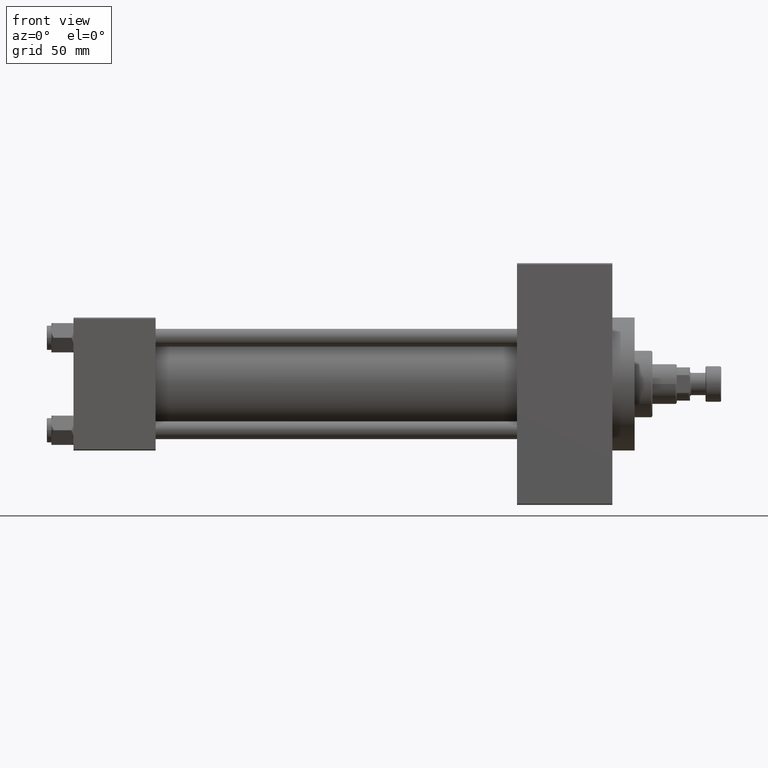
[diagram: clean part render]
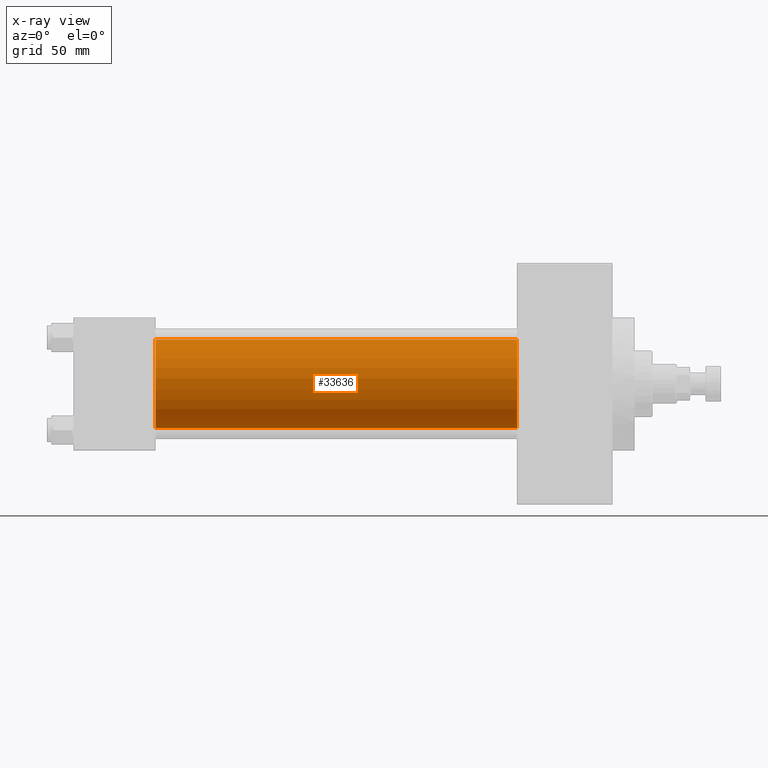
[diagram: x-ray — body ghosted, one internal face saturated and labeled with its STEP entity id]
A machine part, front view, then the same camera in x-ray: the body is ghosted and one INTERNAL B-rep face — a face not visible from any outside direction — is saturated and labeled: STEP entity #33636.
In plain terms, the highlighted cylindrical surface (partial cylindrical patch) has radius 20 mm, axis along (-1, -0, -0).
Its self-contained STEP definition (entity closure, byte-faithful):
#789 = VERTEX_POINT ( 'NONE', #48350 ) ;
#3115 = CARTESIAN_POINT ( 'NONE',  ( 37.00000000000000000, -2.602085213965210642E-15, 0.000000000000000000 ) ) ;
#5639 = CARTESIAN_POINT ( 'NONE',  ( 200.0000000000000000, -2.602085213965210642E-15, 0.000000000000000000 ) ) ;
#7123 = DIRECTION ( 'NONE',  ( 1.000000000000000000, 0.000000000000000000, 0.000000000000000000 ) ) ;
#8199 = EDGE_CURVE ( 'NONE', #789, #20925, #27838, .T. ) ;
#8956 = CARTESIAN_POINT ( 'NONE',  ( 200.0000000000000000, -1.527916156705042519E-16, -20.00000000000000000 ) ) ;
#9455 = VERTEX_POINT ( 'NONE', #26634 ) ;
#9946 = DIRECTION ( 'NONE',  ( -1.000000000000000000, -0.000000000000000000, -0.000000000000000000 ) ) ;
#10307 = CARTESIAN_POINT ( 'NONE',  ( 200.0000000000000000, -2.602085213965210642E-15, 20.00000000000000000 ) ) ;
#11573 = EDGE_LOOP ( 'NONE', ( #49442, #42451, #15808, #18235 ) ) ;
#11867 = CARTESIAN_POINT ( 'NONE',  ( 37.00000000000000000, -1.527916156705042519E-16, -20.00000000000000000 ) ) ;
#15808 = ORIENTED_EDGE ( 'NONE', *, *, #19436, .F. ) ;
#17196 = DIRECTION ( 'NONE',  ( 0.000000000000000000, 0.000000000000000000, -1.000000000000000000 ) ) ;
#18235 = ORIENTED_EDGE ( 'NONE', *, *, #35973, .F. ) ;
#19436 = EDGE_CURVE ( 'NONE', #9455, #40500, #48622, .T. ) ;
#20925 = VERTEX_POINT ( 'NONE', #45870 ) ;
#23032 = AXIS2_PLACEMENT_3D ( 'NONE', #5639, #32544, #17196 ) ;
#26634 = CARTESIAN_POINT ( 'NONE',  ( 37.00000000000000000, -2.602085213965210642E-15, 20.00000000000000000 ) ) ;
#27838 = CIRCLE ( 'NONE', #23032, 20.00000000000000000 ) ;
#28596 = DIRECTION ( 'NONE',  ( -1.000000000000000000, -0.000000000000000000, -0.000000000000000000 ) ) ;
#32343 = LINE ( 'NONE', #8956, #35509 ) ;
#32544 = DIRECTION ( 'NONE',  ( 1.000000000000000000, 0.000000000000000000, 0.000000000000000000 ) ) ;
#32628 = CARTESIAN_POINT ( 'NONE',  ( 200.0000000000000000, -2.602085213965210642E-15, 0.000000000000000000 ) ) ;
#33636 = ADVANCED_FACE ( 'NONE', ( #40935 ), #44192, .F. ) ;
#33788 = DIRECTION ( 'NONE',  ( 0.000000000000000000, 0.000000000000000000, -1.000000000000000000 ) ) ;
#35509 = VECTOR ( 'NONE', #9946, 1000.000000000000000 ) ;
#35973 = EDGE_CURVE ( 'NONE', #789, #9455, #49293, .T. ) ;
#37328 = EDGE_CURVE ( 'NONE', #20925, #40500, #32343, .T. ) ;
#40500 = VERTEX_POINT ( 'NONE', #11867 ) ;
#40935 = FACE_OUTER_BOUND ( 'NONE', #11573, .T. ) ;
#41005 = DIRECTION ( 'NONE',  ( -1.000000000000000000, -0.000000000000000000, -0.000000000000000000 ) ) ;
#42451 = ORIENTED_EDGE ( 'NONE', *, *, #37328, .T. ) ;
#42608 = AXIS2_PLACEMENT_3D ( 'NONE', #32628, #28596, #44691 ) ;
#44192 = CYLINDRICAL_SURFACE ( 'NONE', #42608, 20.00000000000000000 ) ;
#44691 = DIRECTION ( 'NONE',  ( 0.000000000000000000, 0.000000000000000000, 1.000000000000000000 ) ) ;
#45870 = CARTESIAN_POINT ( 'NONE',  ( 200.0000000000000000, -1.527916156705042519E-16, -20.00000000000000000 ) ) ;
#48317 = VECTOR ( 'NONE', #41005, 1000.000000000000000 ) ;
#48350 = CARTESIAN_POINT ( 'NONE',  ( 200.0000000000000000, -2.602085213965210642E-15, 20.00000000000000000 ) ) ;
#48622 = CIRCLE ( 'NONE', #49433, 20.00000000000000000 ) ;
#49293 = LINE ( 'NONE', #10307, #48317 ) ;
#49433 = AXIS2_PLACEMENT_3D ( 'NONE', #3115, #7123, #33788 ) ;
#49442 = ORIENTED_EDGE ( 'NONE', *, *, #8199, .T. ) ;